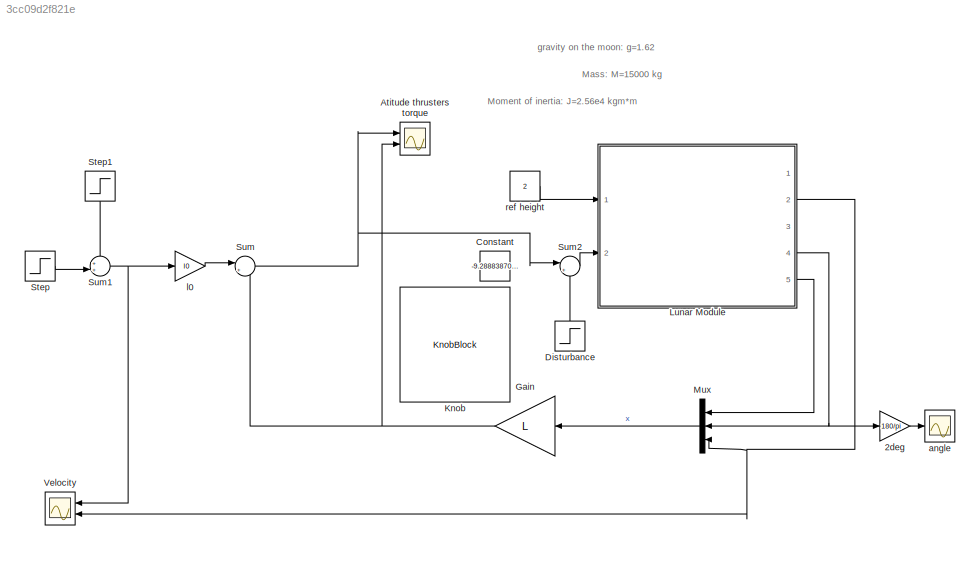
MODEL slx_3cc09d2f821e
KIND model
CONFIG AbsTol = auto
CONFIG EnableMultiTasking = off
CONFIG FixedStep = auto
CONFIG MaxStep = 0.01
CONFIG MinStep = auto
CONFIG RelTol = 1e-3
CONFIG SampleTimeConstraint = Unconstrained
CONFIG Solver = VariableStepAuto
CONFIG SolverName = VariableStepAuto
CONFIG StartTime = 0.0
CONFIG StopTime = 40
BLOCK [Gain] 2deg
  Gain = 180/pi
BLOCK [Scope] Atitude thrusters torque
  Floating = off
  NumInputPorts = 2
  Ports = [2]
  ScopeSpecificationString = Simulink.scopes.TimeScopeBlockCfg('CurrentConfiguration', extmgr.ConfigurationSet(extmgr.Configuration('Core','General UI',true),extmgr.Configuration('Core','Source UI',true),extmgr.Configuration('Sources','WiredSimulink',true,'DataLoggingVariableName','ScopeData1'),extmgr.Configuration('Visuals','Time Domain',true,'SerializedDisplays',{struct('MinYLimReal','-57071.20539','MaxYLimReal','39587.6166...<+1425ch>
BLOCK [Constant] Constant
  Value = -9.288838704427121
BLOCK [Step] Disturbance
  After = 8e3
  SampleTime = 0
  Time = 30
BLOCK [Gain] Gain
  Gain = L
  Multiplication = Matrix(K*u) (u vector)
BLOCK [KnobBlock] Knob
  ScaleMax = 1000
  ScaleMin = -1000
  WebBlockId = 79
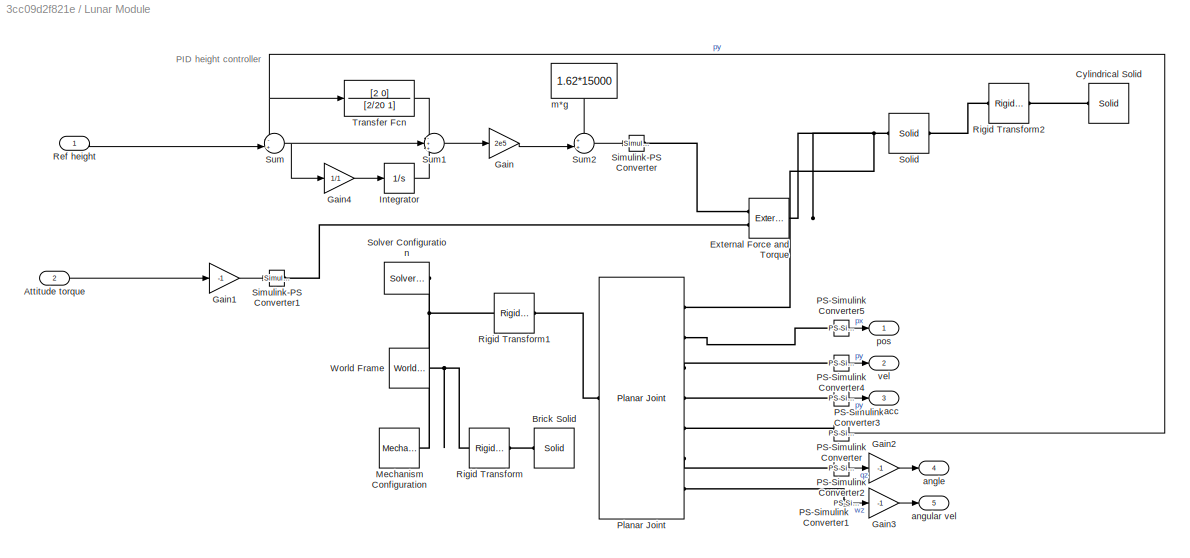
BLOCK [SubSystem] Lunar Module
  Ports = [2, 5]
  RequestExecContextInheritance = off
BLOCK [Inport] Lunar Module/Attitude torque
  Port = 2
BLOCK [Reference] Lunar Module/Brick Solid  REF=sm_lib/Body Elements/Solid
  Ports = [0, 0, 0, 0, 0, 0, 1]
  SourceBlock = sm_lib/Body Elements/Solid
  SourceProductBaseCode = MS
  SourceType = Brick Solid
BLOCK [Reference] Lunar Module/Cylindrical Solid  REF=sm_lib/Body Elements/Solid
  Ports = [0, 0, 0, 0, 0, 0, 1]
  SourceBlock = sm_lib/Body Elements/Solid
  SourceProductBaseCode = MS
  SourceType = Cylindrical Solid
BLOCK [Reference] Lunar Module/External Force and Torque  REF=sm_lib/Forces and
Torques/External Force
and Torque
  Ports = [0, 0, 0, 0, 0, 2, 1]
  SourceBlock = sm_lib/Forces and\nTorques/External Force\nand Torque
  SourceProductBaseCode = MS
  SourceType = External Force\nand Torque
BLOCK [Gain] Lunar Module/Gain
  Gain = 2e5
BLOCK [Gain] Lunar Module/Gain1
  Gain = -1
BLOCK [Gain] Lunar Module/Gain2
  Gain = -1
BLOCK [Gain] Lunar Module/Gain3
  Gain = -1
BLOCK [Gain] Lunar Module/Gain4
  Gain = 1/1
BLOCK [Integrator] Lunar Module/Integrator
  Ports = [1, 1]
BLOCK [Reference] Lunar Module/Mechanism Configuration  REF=sm_lib/Utilities/Mechanism
Configuration
  Ports = [0, 0, 0, 0, 0, 0, 1]
  SourceBlock = sm_lib/Utilities/Mechanism\nConfiguration
  SourceProductBaseCode = MS
  SourceType = Mechanism\nConfiguration
BLOCK [Reference] Lunar Module/PS-Simulink Converter  REF=nesl_utility/PS-Simulink
Converter
  Ports = [0, 1, 0, 0, 0, 1]
  SourceBlock = nesl_utility/PS-Simulink\nConverter
  SourceProductBaseCode = PW,SS
  SourceType = PS-Simulink\nConverter
BLOCK [Reference] Lunar Module/PS-Simulink Converter1  REF=nesl_utility/PS-Simulink
Converter
  Ports = [0, 1, 0, 0, 0, 1]
  SourceBlock = nesl_utility/PS-Simulink\nConverter
  SourceProductBaseCode = PW,SS
  SourceType = PS-Simulink\nConverter
BLOCK [Reference] Lunar Module/PS-Simulink Converter2  REF=nesl_utility/PS-Simulink
Converter
  Ports = [0, 1, 0, 0, 0, 1]
  SourceBlock = nesl_utility/PS-Simulink\nConverter
  SourceProductBaseCode = PW,SS
  SourceType = PS-Simulink\nConverter
BLOCK [Reference] Lunar Module/PS-Simulink Converter3  REF=nesl_utility/PS-Simulink
Converter
  Ports = [0, 1, 0, 0, 0, 1]
  SourceBlock = nesl_utility/PS-Simulink\nConverter
  SourceProductBaseCode = PW,SS
  SourceType = PS-Simulink\nConverter
BLOCK [Reference] Lunar Module/PS-Simulink Converter4  REF=nesl_utility/PS-Simulink
Converter
  Ports = [0, 1, 0, 0, 0, 1]
  SourceBlock = nesl_utility/PS-Simulink\nConverter
  SourceProductBaseCode = PW,SS
  SourceType = PS-Simulink\nConverter
BLOCK [Reference] Lunar Module/PS-Simulink Converter5  REF=nesl_utility/PS-Simulink
Converter
  Ports = [0, 1, 0, 0, 0, 1]
  SourceBlock = nesl_utility/PS-Simulink\nConverter
  SourceProductBaseCode = PW,SS
  SourceType = PS-Simulink\nConverter
BLOCK [Reference] Lunar Module/Planar Joint  REF=sm_lib/Joints/Planar Joint
  Ports = [0, 0, 0, 0, 0, 1, 7]
  SourceBlock = sm_lib/Joints/Planar Joint
  SourceProductBaseCode = MS
  SourceType = Planar Joint
BLOCK [Inport] Lunar Module/Ref height
BLOCK [Reference] Lunar Module/Rigid Transform  REF=sm_lib/Frames and
Transforms/Rigid
Transform
  Ports = [0, 0, 0, 0, 0, 1, 1]
  SourceBlock = sm_lib/Frames and\nTransforms/Rigid\nTransform
  SourceProductBaseCode = MS
  SourceType = Rigid\nTransform
BLOCK [Reference] Lunar Module/Rigid Transform1  REF=sm_lib/Frames and
Transforms/Rigid
Transform
  Ports = [0, 0, 0, 0, 0, 1, 1]
  SourceBlock = sm_lib/Frames and\nTransforms/Rigid\nTransform
  SourceProductBaseCode = MS
  SourceType = Rigid\nTransform
BLOCK [Reference] Lunar Module/Rigid Transform2  REF=sm_lib/Frames and
Transforms/Rigid
Transform
  Ports = [0, 0, 0, 0, 0, 1, 1]
  SourceBlock = sm_lib/Frames and\nTransforms/Rigid\nTransform
  SourceProductBaseCode = MS
  SourceType = Rigid\nTransform
BLOCK [Reference] Lunar Module/Simulink-PS Converter  REF=nesl_utility/Simulink-PS
Converter
  Ports = [1, 0, 0, 0, 0, 0, 1]
  SourceBlock = nesl_utility/Simulink-PS\nConverter
  SourceProductBaseCode = PW,SS
  SourceType = Simulink-PS\nConverter
BLOCK [Reference] Lunar Module/Simulink-PS Converter1  REF=nesl_utility/Simulink-PS
Converter
  Ports = [1, 0, 0, 0, 0, 0, 1]
  SourceBlock = nesl_utility/Simulink-PS\nConverter
  SourceProductBaseCode = PW,SS
  SourceType = Simulink-PS\nConverter
BLOCK [Reference] Lunar Module/Solid  REF=sm_lib/Body Elements/Solid
  Ports = [0, 0, 0, 0, 0, 1, 1]
  SourceBlock = sm_lib/Body Elements/Solid
  SourceProductBaseCode = MS
  SourceType = Cylindrical Solid
BLOCK [Reference] Lunar Module/Solver Configuration  REF=nesl_utility/Solver
Configuration
  Ports = [0, 0, 0, 0, 0, 0, 1]
  SourceBlock = nesl_utility/Solver\nConfiguration
  SourceProductBaseCode = PW,SS
  SourceType = Solver\nConfiguration
BLOCK [Sum] Lunar Module/Sum
  Inputs = -+|
  Ports = [2, 1]
BLOCK [Sum] Lunar Module/Sum1
  Inputs = -++
  Ports = [3, 1]
BLOCK [Sum] Lunar Module/Sum2
  Inputs = ++|
  Ports = [2, 1]
BLOCK [TransferFcn] Lunar Module/Transfer Fcn
  Denominator = [2/20 1]
  Numerator = [2 0]
BLOCK [Reference] Lunar Module/World Frame  REF=sm_lib/Frames and
Transforms/World Frame
  Ports = [0, 0, 0, 0, 0, 0, 1]
  SourceBlock = sm_lib/Frames and\nTransforms/World Frame
  SourceProductBaseCode = MS
  SourceType = World Frame
BLOCK [Outport] Lunar Module/acc
  Port = 3
BLOCK [Outport] Lunar Module/angle
  Port = 4
BLOCK [Outport] Lunar Module/angular vel
  Port = 5
BLOCK [Constant] Lunar Module/m*g
  Value = 1.62*15000
BLOCK [Outport] Lunar Module/pos
BLOCK [Outport] Lunar Module/vel
  Port = 2
BLOCK [Mux] Mux
  DisplayOption = bar
  Inputs = 3
  Ports = [3, 1]
BLOCK [Step] Step
  After = 1.5
  SampleTime = 0
  Time = 6
BLOCK [Step] Step1
  After = -3
  SampleTime = 0
  Time = 20
BLOCK [Sum] Sum
  Inputs = |+-
  Ports = [2, 1]
BLOCK [Sum] Sum1
  Inputs = ++|
  Ports = [2, 1]
BLOCK [Sum] Sum2
  Inputs = |++
  Ports = [2, 1]
BLOCK [Scope] Velocity
  Floating = off
  NumInputPorts = 2
  Ports = [2]
  ScopeSpecificationString = Simulink.scopes.TimeScopeBlockCfg('CurrentConfiguration', extmgr.ConfigurationSet(extmgr.Configuration('Core','General UI',true),extmgr.Configuration('Core','Source UI',true),extmgr.Configuration('Sources','WiredSimulink',true),extmgr.Configuration('Visuals','Time Domain',true,'SerializedDisplays',{struct('MinYLimReal','-1.97082','MaxYLimReal','1.92521','YLabelReal','','MinYLimMag','0.00000','MaxY...<+1408ch>
BLOCK [Scope] angle
  Floating = off
  NumInputPorts = 1
  Ports = [1]
  ScopeSpecificationString = Simulink.scopes.TimeScopeBlockCfg('CurrentConfiguration', extmgr.ConfigurationSet(extmgr.Configuration('Core','General UI',true),extmgr.Configuration('Core','Source UI',true),extmgr.Configuration('Sources','WiredSimulink',true,'DataLoggingVariableName','ScopeData2'),extmgr.Configuration('Visuals','Time Domain',true),extmgr.Configuration('Tools','Plot Navigation',true),extmgr.Configuration('Tools',...<+40ch>
BLOCK [Gain] l0
  Gain = l0
BLOCK [Constant] ref height
  Value = 2
ANNOTATION (root): Mass: M=15000 kg
ANNOTATION (root): Moment of inertia: J=2.56e4 kgm*m
ANNOTATION (root): gravity on the moon: g=1.62
ANNOTATION Lunar Module: PID height controller
LINE 2deg:1 -> angle:1
LINE Disturbance:1 -> Sum2:2
NET Gain:1 -> Atitude thrusters torque:2, Sum:2
LINE Lunar Module/Attitude torque:1 -> Lunar Module/Gain1:1
LINE Lunar Module/Gain1:1 -> Lunar Module/Simulink-PS Converter1:1
LINE Lunar Module/Gain2:1 -> Lunar Module/angle:1
LINE Lunar Module/Gain3:1 -> Lunar Module/angular vel:1
LINE Lunar Module/Gain4:1 -> Lunar Module/Integrator:1
LINE Lunar Module/Gain:1 -> Lunar Module/Sum2:2
LINE Lunar Module/Integrator:1 -> Lunar Module/Sum1:3
LINE Lunar Module/PS-Simulink Converter1:1 -> Lunar Module/Gain3:1
LINE Lunar Module/PS-Simulink Converter2:1 -> Lunar Module/Gain2:1
LINE Lunar Module/PS-Simulink Converter3:1 -> Lunar Module/acc:1
LINE Lunar Module/PS-Simulink Converter4:1 -> Lunar Module/vel:1
LINE Lunar Module/PS-Simulink Converter5:1 -> Lunar Module/pos:1
NET Lunar Module/PS-Simulink Converter:1 -> Lunar Module/Sum:1, Lunar Module/Transfer Fcn:1
LINE Lunar Module/Ref height:1 -> Lunar Module/Sum:2
LINE Lunar Module/Sum1:1 -> Lunar Module/Gain:1
LINE Lunar Module/Sum2:1 -> Lunar Module/Simulink-PS Converter:1
NET Lunar Module/Sum:1 -> Lunar Module/Gain4:1, Lunar Module/Sum1:2
LINE Lunar Module/Transfer Fcn:1 -> Lunar Module/Sum1:1
LINE Lunar Module/m*g:1 -> Lunar Module/Sum2:1
NET Lunar Module:2 -> Mux:3, Velocity:2
NET Lunar Module:4 -> 2deg:1, Mux:2
LINE Lunar Module:5 -> Mux:1
LINE Mux:1 -> Gain:1
LINE Step1:1 -> Sum1:1
LINE Step:1 -> Sum1:2
NET Sum1:1 -> Velocity:1, l0:1
LINE Sum2:1 -> Lunar Module:2
NET Sum:1 -> Atitude thrusters torque:1, Sum2:1
LINE l0:1 -> Sum:1
LINE ref height:1 -> Lunar Module:1
PLINE Lunar Module/Brick Solid:RConn1 -- Lunar Module/Rigid Transform:RConn1
PLINE Lunar Module/Cylindrical Solid:RConn1 -- Lunar Module/Rigid Transform2:RConn1
PLINE Lunar Module/External Force and Torque:LConn1 -- Lunar Module/Simulink-PS Converter:RConn1
PLINE Lunar Module/External Force and Torque:LConn2 -- Lunar Module/Simulink-PS Converter1:RConn1
PNET net1: Lunar Module/External Force and Torque:RConn1 -- Lunar Module/Planar Joint:RConn1 -- Lunar Module/Solid:LConn1
PNET net2: Lunar Module/Mechanism Configuration:RConn1 -- Lunar Module/Rigid Transform1:LConn1 -- Lunar Module/Rigid Transform:LConn1 -- Lunar Module/Solver Configuration:RConn1 -- Lunar Module/World Frame:RConn1
PLINE Lunar Module/PS-Simulink Converter1:LConn1 -- Lunar Module/Planar Joint:RConn7
PLINE Lunar Module/PS-Simulink Converter2:LConn1 -- Lunar Module/Planar Joint:RConn6
PLINE Lunar Module/PS-Simulink Converter3:LConn1 -- Lunar Module/Planar Joint:RConn4
PLINE Lunar Module/PS-Simulink Converter4:LConn1 -- Lunar Module/Planar Joint:RConn3
PLINE Lunar Module/PS-Simulink Converter5:LConn1 -- Lunar Module/Planar Joint:RConn2
PLINE Lunar Module/PS-Simulink Converter:LConn1 -- Lunar Module/Planar Joint:RConn5
PLINE Lunar Module/Planar Joint:LConn1 -- Lunar Module/Rigid Transform1:RConn1
PLINE Lunar Module/Rigid Transform2:LConn1 -- Lunar Module/Solid:RConn1
note: NET lines group one-source signal fan-out (src -> all destinations, sorted); 1:1 wires keep LINE; PNET lines group multi-terminal physical nets as a canonical sorted terminal list (undirected conserving connections); 2-terminal nets keep the pairwise PLINE form
